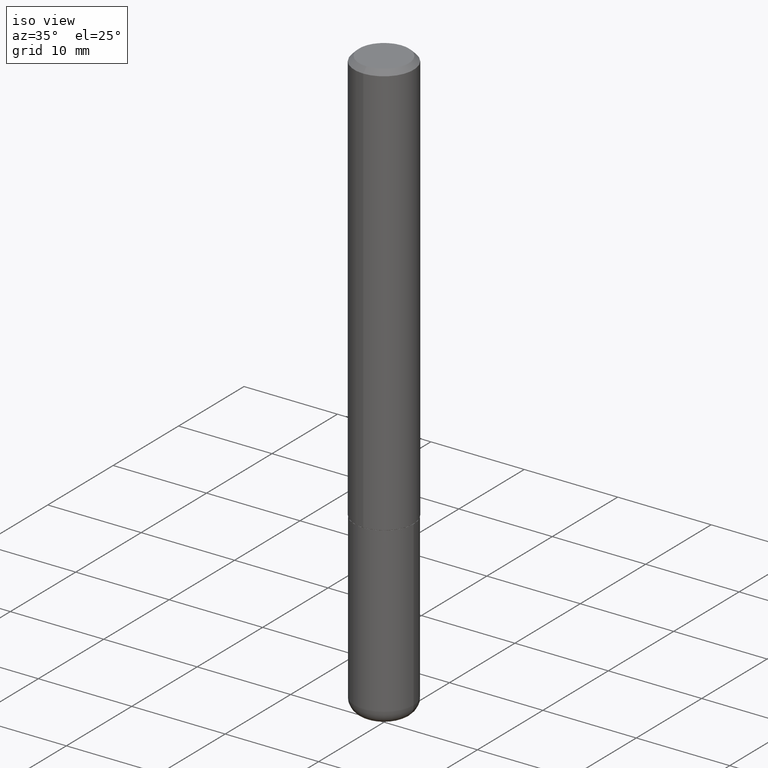
[diagram: clean part render]
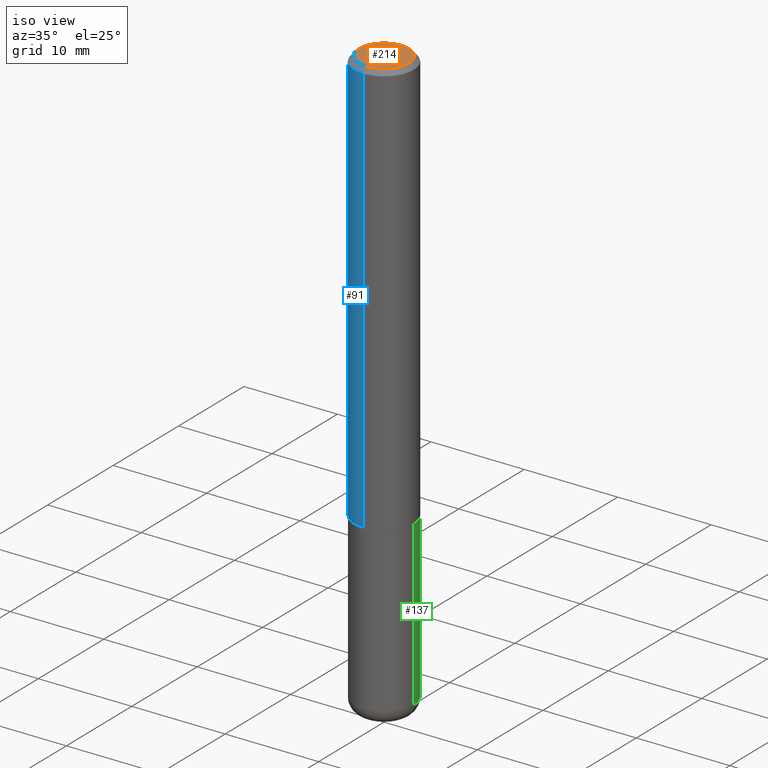
[diagram: same view with three faces highlighted in distinct colors, each labeled with its STEP entity id]
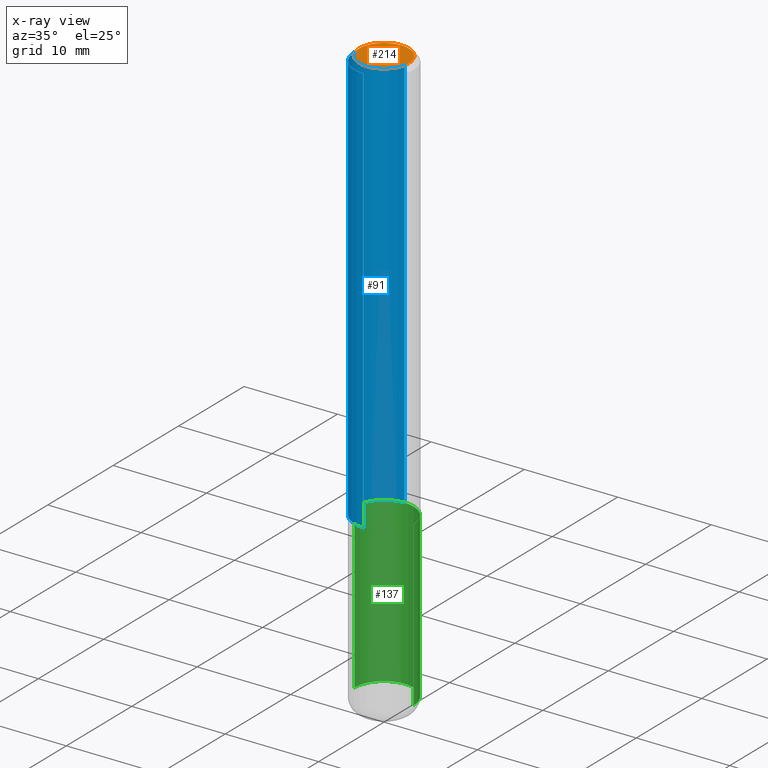
[diagram: x-ray of the same camera — body ghosted, the three highlighted faces saturated]
A machine part, iso view with three faces highlighted in distinct colors.
The next image is the same camera in x-ray (body ghosted, the three faces saturated) — at least one of them is partly hidden behind the body in this view.
Their STEP definitions:

[orange] entity #214 — the highlighted planar face has unit normal (0, -0, -1).
#19 = DIRECTION ( 'NONE',  ( 2.444769625519019109E-29, -3.492482605351917386E-15, -1.000000000000000000 ) ) ;
#58 = EDGE_CURVE ( 'NONE', #394, #263, #174, .T. ) ;
#61 = AXIS2_PLACEMENT_3D ( 'NONE', #116, #19, #153 ) ;
#108 = CARTESIAN_POINT ( 'NONE',  ( -7.889572697437263111E-16, -0.1050000000000001210, 2.643715067829629270E-16 ) ) ;
#110 = EDGE_LOOP ( 'NONE', ( #260, #139 ) ) ;
#116 = CARTESIAN_POINT ( 'NONE',  ( 7.332110811570587146E-16, 0.1050000000000001210, -4.178802569514461450E-16 ) ) ;
#117 = DIRECTION ( 'NONE',  ( -2.444769625519019670E-29, 3.492482605351917386E-15, 1.000000000000000000 ) ) ;
#121 = DIRECTION ( 'NONE',  ( -6.982962677686265133E-15, -1.000000000000000000, 3.492482605351917386E-15 ) ) ;
#139 = ORIENTED_EDGE ( 'NONE', *, *, #58, .T. ) ;
#143 = EDGE_CURVE ( 'NONE', #263, #394, #362, .T. ) ;
#145 = PLANE ( 'NONE',  #61 ) ;
#153 = DIRECTION ( 'NONE',  ( 6.982962677686265922E-15, 1.000000000000000000, -3.492482605351917386E-15 ) ) ;
#156 = CARTESIAN_POINT ( 'NONE',  ( 2.501956864421970211E-45, -3.574177598218272952E-31, -1.023391667789888407E-16 ) ) ;
#174 = CIRCLE ( 'NONE', #264, 0.1050000000000001210 ) ;
#213 = FACE_OUTER_BOUND ( 'NONE', #110, .T. ) ;
#214 = ADVANCED_FACE ( 'NONE', ( #213 ), #145, .F. ) ;
#224 = AXIS2_PLACEMENT_3D ( 'NONE', #249, #117, #307 ) ;
#249 = CARTESIAN_POINT ( 'NONE',  ( 2.501956864421970211E-45, -3.574177598218272952E-31, -1.023391667789888407E-16 ) ) ;
#260 = ORIENTED_EDGE ( 'NONE', *, *, #143, .T. ) ;
#263 = VERTEX_POINT ( 'NONE', #306 ) ;
#264 = AXIS2_PLACEMENT_3D ( 'NONE', #156, #316, #121 ) ;
#306 = CARTESIAN_POINT ( 'NONE',  ( 8.030407079339212239E-16, 0.1050000000000001210, -4.690498403409406824E-16 ) ) ;
#307 = DIRECTION ( 'NONE',  ( -6.982962677686265133E-15, -1.000000000000000000, 3.492482605351917386E-15 ) ) ;
#316 = DIRECTION ( 'NONE',  ( -2.444769625519019670E-29, 3.492482605351917386E-15, 1.000000000000000000 ) ) ;
#362 = CIRCLE ( 'NONE', #224, 0.1050000000000001210 ) ;
#394 = VERTEX_POINT ( 'NONE', #108 ) ;

[blue] entity #91 — the highlighted cylindrical surface (edge-blend (fillet) strip) has radius 3.175 mm, axis along (-0, 0, 1).
#15 = EDGE_CURVE ( 'NONE', #398, #26, #152, .T. ) ;
#17 = CARTESIAN_POINT ( 'NONE',  ( 8.881784197001479121E-16, 0.1249999999999941019, -1.749000000000000332 ) ) ;
#24 = CYLINDRICAL_SURFACE ( 'NONE', #205, 0.1250000000000001110 ) ;
#26 = VERTEX_POINT ( 'NONE', #93 ) ;
#33 = ORIENTED_EDGE ( 'NONE', *, *, #204, .T. ) ;
#43 = VECTOR ( 'NONE', #400, 39.37007874015748143 ) ;
#55 = CARTESIAN_POINT ( 'NONE',  ( 4.889539251038044560E-31, -6.984965210703842315E-17, -0.02000000000000002470 ) ) ;
#67 = DIRECTION ( 'NONE',  ( -2.444769625519019670E-29, 3.492482605351917386E-15, 1.000000000000000000 ) ) ;
#72 = ORIENTED_EDGE ( 'NONE', *, *, #15, .F. ) ;
#86 = DIRECTION ( 'NONE',  ( -2.444769625519019670E-29, 3.492482605351917386E-15, 1.000000000000000000 ) ) ;
#91 = ADVANCED_FACE ( 'NONE', ( #250 ), #24, .T. ) ;
#93 = CARTESIAN_POINT ( 'NONE',  ( -8.575622497214408537E-16, -0.1250000000000000555, -0.01999999999999959102 ) ) ;
#103 = CARTESIAN_POINT ( 'NONE',  ( 8.881784197001260212E-16, 0.1250000000000001110, -4.365603256689900677E-16 ) ) ;
#114 = DIRECTION ( 'NONE',  ( -2.444769625519019670E-29, 3.492482605351917386E-15, 1.000000000000000000 ) ) ;
#115 = EDGE_CURVE ( 'NONE', #333, #26, #142, .T. ) ;
#142 = LINE ( 'NONE', #218, #43 ) ;
#152 = CIRCLE ( 'NONE', #292, 0.1250000000000000000 ) ;
#191 = DIRECTION ( 'NONE',  ( -2.444769625519019670E-29, 3.492482605351917386E-15, 1.000000000000000000 ) ) ;
#204 = EDGE_CURVE ( 'NONE', #238, #333, #270, .T. ) ;
#205 = AXIS2_PLACEMENT_3D ( 'NONE', #290, #86, #223 ) ;
#206 = ORIENTED_EDGE ( 'NONE', *, *, #381, .F. ) ;
#218 = CARTESIAN_POINT ( 'NONE',  ( -8.728703347107841277E-16, -0.1250000000000001110, 4.365603256689900677E-16 ) ) ;
#220 = DIRECTION ( 'NONE',  ( -6.982962677686265133E-15, -1.000000000000000000, 4.370956789862812472E-15 ) ) ;
#221 = DIRECTION ( 'NONE',  ( -6.982962677686265922E-15, -1.000000000000000000, 3.483106191921935554E-15 ) ) ;
#223 = DIRECTION ( 'NONE',  ( -6.982962677686266711E-15, -1.000000000000000000, 3.492482605351917386E-15 ) ) ;
#238 = VERTEX_POINT ( 'NONE', #17 ) ;
#250 = FACE_OUTER_BOUND ( 'NONE', #383, .T. ) ;
#270 = CIRCLE ( 'NONE', #338, 0.1250000000000002498 ) ;
#290 = CARTESIAN_POINT ( 'NONE',  ( 0.000000000000000000, 0.000000000000000000, 0.000000000000000000 ) ) ;
#292 = AXIS2_PLACEMENT_3D ( 'NONE', #55, #191, #221 ) ;
#295 = LINE ( 'NONE', #103, #401 ) ;
#303 = ORIENTED_EDGE ( 'NONE', *, *, #115, .T. ) ;
#312 = CARTESIAN_POINT ( 'NONE',  ( -8.728703347107422194E-16, -0.1250000000000063560, -1.748999999999999222 ) ) ;
#326 = CARTESIAN_POINT ( 'NONE',  ( 8.728703347107837333E-16, 0.1249999999999999306, -0.02000000000000046185 ) ) ;
#333 = VERTEX_POINT ( 'NONE', #312 ) ;
#338 = AXIS2_PLACEMENT_3D ( 'NONE', #402, #114, #220 ) ;
#381 = EDGE_CURVE ( 'NONE', #238, #398, #295, .T. ) ;
#383 = EDGE_LOOP ( 'NONE', ( #206, #33, #303, #72 ) ) ;
#398 = VERTEX_POINT ( 'NONE', #326 ) ;
#400 = DIRECTION ( 'NONE',  ( -2.444769625519019670E-29, 3.492482605351917386E-15, 1.000000000000000000 ) ) ;
#401 = VECTOR ( 'NONE', #67, 39.37007874015748143 ) ;
#402 = CARTESIAN_POINT ( 'NONE',  ( 4.275902075032765006E-29, -6.108352076760502035E-15, -1.748999999999999888 ) ) ;

[green] entity #137 — the highlighted cylindrical surface (edge-blend (fillet) strip) has radius 3.175 mm, axis along (-0, 0, 1).
#11 = CYLINDRICAL_SURFACE ( 'NONE', #118, 0.1250000000000000000 ) ;
#22 = DIRECTION ( 'NONE',  ( 1.000000000000000000, -6.982962677686262766E-15, 0.000000000000000000 ) ) ;
#38 = ORIENTED_EDGE ( 'NONE', *, *, #71, .T. ) ;
#46 = CARTESIAN_POINT ( 'NONE',  ( 0.1250000000000000000, -8.728703347107833388E-16, 6.095220969744919741E-30 ) ) ;
#47 = VERTEX_POINT ( 'NONE', #57 ) ;
#57 = CARTESIAN_POINT ( 'NONE',  ( 0.1249999999999999861, -9.392084801488058387E-15, -2.440000000000000391 ) ) ;
#71 = EDGE_CURVE ( 'NONE', #219, #374, #350, .T. ) ;
#75 = DIRECTION ( 'NONE',  ( 1.000000000000000000, -6.982962677686266711E-15, 4.876176775795935793E-29 ) ) ;
#89 = CIRCLE ( 'NONE', #144, 0.1250000000000000000 ) ;
#95 = CARTESIAN_POINT ( 'NONE',  ( 4.279570410823989044E-29, -6.110092342975505460E-15, -1.750000000000000222 ) ) ;
#118 = AXIS2_PLACEMENT_3D ( 'NONE', #358, #403, #75 ) ;
#137 = ADVANCED_FACE ( 'NONE', ( #369 ), #11, .T. ) ;
#140 = EDGE_LOOP ( 'NONE', ( #267, #38, #183, #328 ) ) ;
#144 = AXIS2_PLACEMENT_3D ( 'NONE', #182, #275, #376 ) ;
#149 = LINE ( 'NONE', #46, #356 ) ;
#150 = CARTESIAN_POINT ( 'NONE',  ( -0.1250000000000000000, 8.881784197001252323E-16, -6.148668862818632227E-30 ) ) ;
#154 = CIRCLE ( 'NONE', #388, 0.1250000000000000000 ) ;
#168 = CARTESIAN_POINT ( 'NONE',  ( -0.1250000000000000000, -6.426474985176265022E-15, -1.750000000000000222 ) ) ;
#177 = CARTESIAN_POINT ( 'NONE',  ( 0.1250000000000000000, -6.982962677686288010E-15, -1.750000000000000222 ) ) ;
#182 = CARTESIAN_POINT ( 'NONE',  ( 5.966943887091733341E-29, -8.519214466777275048E-15, -2.440000000000000391 ) ) ;
#183 = ORIENTED_EDGE ( 'NONE', *, *, #337, .F. ) ;
#186 = DIRECTION ( 'NONE',  ( -2.445468806185136877E-29, 3.491481338843145188E-15, 1.000000000000000000 ) ) ;
#209 = VERTEX_POINT ( 'NONE', #177 ) ;
#219 = VERTEX_POINT ( 'NONE', #244 ) ;
#244 = CARTESIAN_POINT ( 'NONE',  ( -0.1249999999999999861, -7.631036047077151393E-15, -2.440000000000000391 ) ) ;
#262 = EDGE_CURVE ( 'NONE', #47, #209, #149, .T. ) ;
#267 = ORIENTED_EDGE ( 'NONE', *, *, #274, .T. ) ;
#274 = EDGE_CURVE ( 'NONE', #47, #219, #89, .T. ) ;
#275 = DIRECTION ( 'NONE',  ( -2.445468806185136597E-29, 3.491481338843145583E-15, 1.000000000000000000 ) ) ;
#321 = DIRECTION ( 'NONE',  ( -2.445468806185136597E-29, 3.491481338843145583E-15, 1.000000000000000000 ) ) ;
#323 = VECTOR ( 'NONE', #186, 39.37007874015748143 ) ;
#328 = ORIENTED_EDGE ( 'NONE', *, *, #262, .F. ) ;
#336 = DIRECTION ( 'NONE',  ( -2.445468806185136877E-29, 3.491481338843145188E-15, 1.000000000000000000 ) ) ;
#337 = EDGE_CURVE ( 'NONE', #209, #374, #154, .T. ) ;
#350 = LINE ( 'NONE', #150, #323 ) ;
#356 = VECTOR ( 'NONE', #336, 39.37007874015748143 ) ;
#358 = CARTESIAN_POINT ( 'NONE',  ( 0.000000000000000000, 0.000000000000000000, 0.000000000000000000 ) ) ;
#369 = FACE_OUTER_BOUND ( 'NONE', #140, .T. ) ;
#374 = VERTEX_POINT ( 'NONE', #168 ) ;
#376 = DIRECTION ( 'NONE',  ( 1.000000000000000000, -6.982962677686262766E-15, 0.000000000000000000 ) ) ;
#388 = AXIS2_PLACEMENT_3D ( 'NONE', #95, #321, #22 ) ;
#403 = DIRECTION ( 'NONE',  ( -2.445468806185136597E-29, 3.491481338843145583E-15, 1.000000000000000000 ) ) ;